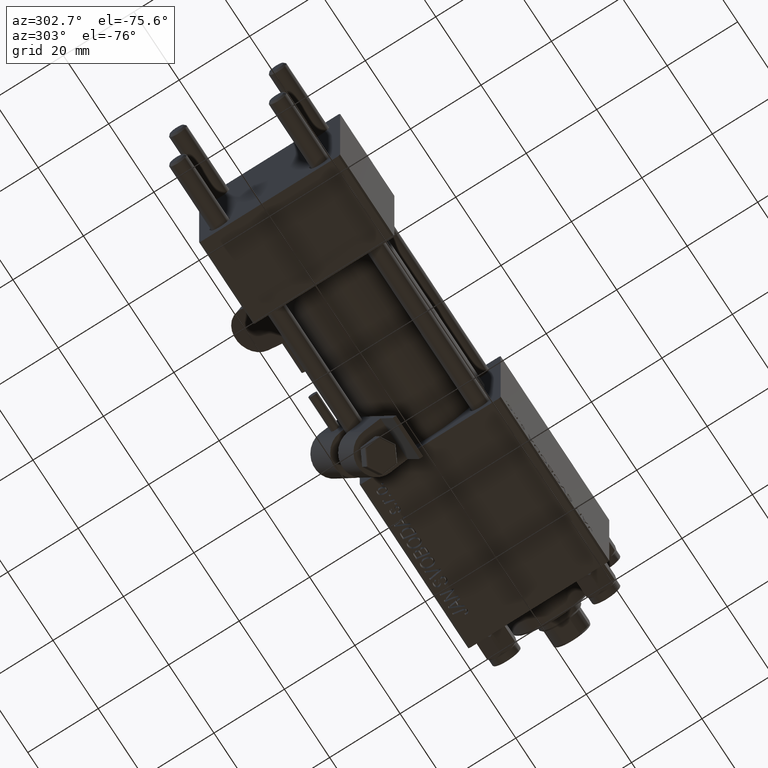
[diagram: clean part render]
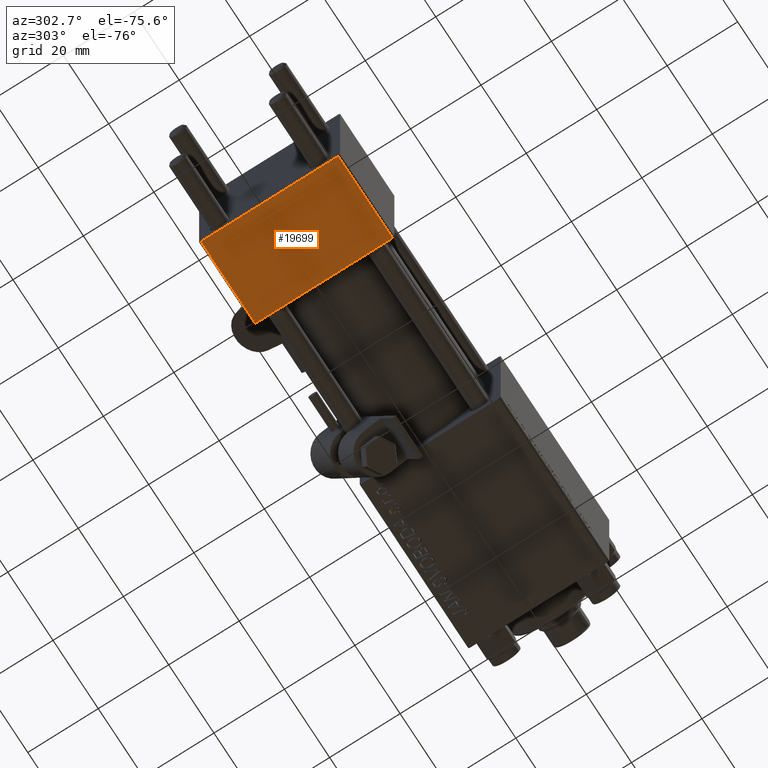
[diagram: same view with one face highlighted and labeled with its STEP entity id]
A machine part, auxiliary view. The second image highlights one B-rep face of the part: STEP entity #19699.
In plain terms, the highlighted planar face has unit normal (0, -0, -1).
Its self-contained STEP definition (entity closure, byte-faithful):
#1579 = VERTEX_POINT ( 'NONE', #11889 ) ;
#4395 = VERTEX_POINT ( 'NONE', #31791 ) ;
#6199 = DIRECTION ( 'NONE',  ( 0.000000000000000000, -1.000000000000000000, 1.734723475976807094E-16 ) ) ;
#6379 = EDGE_LOOP ( 'NONE', ( #13623, #27044, #25378, #23581 ) ) ;
#6529 = DIRECTION ( 'NONE',  ( 0.000000000000000000, 1.000000000000000000, -1.734723475976806848E-16 ) ) ;
#7050 = EDGE_CURVE ( 'NONE', #24614, #4395, #33474, .T. ) ;
#7907 = DIRECTION ( 'NONE',  ( 1.000000000000000000, 0.000000000000000000, 0.000000000000000000 ) ) ;
#8178 = LINE ( 'NONE', #43402, #25666 ) ;
#9327 = DIRECTION ( 'NONE',  ( -1.000000000000000000, 0.000000000000000000, 0.000000000000000000 ) ) ;
#9640 = DIRECTION ( 'NONE',  ( 0.000000000000000000, -1.734723475976806848E-16, -1.000000000000000000 ) ) ;
#9830 = EDGE_CURVE ( 'NONE', #20246, #24614, #29605, .T. ) ;
#10178 = EDGE_CURVE ( 'NONE', #1579, #20246, #27442, .T. ) ;
#11889 = CARTESIAN_POINT ( 'NONE',  ( 0.000000000000000000, 19.50000000000000711, -20.00000000000000711 ) ) ;
#13516 = CARTESIAN_POINT ( 'NONE',  ( 24.00000000000000000, 20.00000000000000000, -20.00000000000000711 ) ) ;
#13623 = ORIENTED_EDGE ( 'NONE', *, *, #31418, .F. ) ;
#16856 = VECTOR ( 'NONE', #6199, 1000.000000000000000 ) ;
#19699 = ADVANCED_FACE ( 'NONE', ( #25325 ), #41758, .T. ) ;
#20246 = VERTEX_POINT ( 'NONE', #44046 ) ;
#23581 = ORIENTED_EDGE ( 'NONE', *, *, #7050, .T. ) ;
#24614 = VERTEX_POINT ( 'NONE', #32688 ) ;
#25325 = FACE_OUTER_BOUND ( 'NONE', #6379, .T. ) ;
#25378 = ORIENTED_EDGE ( 'NONE', *, *, #9830, .T. ) ;
#25666 = VECTOR ( 'NONE', #35938, 1000.000000000000000 ) ;
#27044 = ORIENTED_EDGE ( 'NONE', *, *, #10178, .T. ) ;
#27442 = LINE ( 'NONE', #43128, #40697 ) ;
#29605 = LINE ( 'NONE', #45519, #16856 ) ;
#31418 = EDGE_CURVE ( 'NONE', #1579, #4395, #8178, .T. ) ;
#31791 = CARTESIAN_POINT ( 'NONE',  ( 0.000000000000000000, -19.50000000000000711, -20.00000000000000000 ) ) ;
#32688 = CARTESIAN_POINT ( 'NONE',  ( 24.00000000000000000, -19.50000000000000711, -20.00000000000000000 ) ) ;
#33474 = LINE ( 'NONE', #40698, #45485 ) ;
#35938 = DIRECTION ( 'NONE',  ( 0.000000000000000000, -1.000000000000000000, 1.734723475976807094E-16 ) ) ;
#40697 = VECTOR ( 'NONE', #7907, 1000.000000000000000 ) ;
#40698 = CARTESIAN_POINT ( 'NONE',  ( 0.000000000000000000, -19.50000000000000711, -20.00000000000000000 ) ) ;
#41758 = PLANE ( 'NONE',  #43324 ) ;
#43128 = CARTESIAN_POINT ( 'NONE',  ( 24.00000000000000000, 19.50000000000000711, -20.00000000000000711 ) ) ;
#43324 = AXIS2_PLACEMENT_3D ( 'NONE', #13516, #9640, #6529 ) ;
#43402 = CARTESIAN_POINT ( 'NONE',  ( 0.000000000000000000, 20.00000000000000000, -20.00000000000000711 ) ) ;
#44046 = CARTESIAN_POINT ( 'NONE',  ( 24.00000000000000000, 19.50000000000000711, -20.00000000000000711 ) ) ;
#45485 = VECTOR ( 'NONE', #9327, 1000.000000000000000 ) ;
#45519 = CARTESIAN_POINT ( 'NONE',  ( 24.00000000000000000, 20.00000000000000000, -20.00000000000000711 ) ) ;